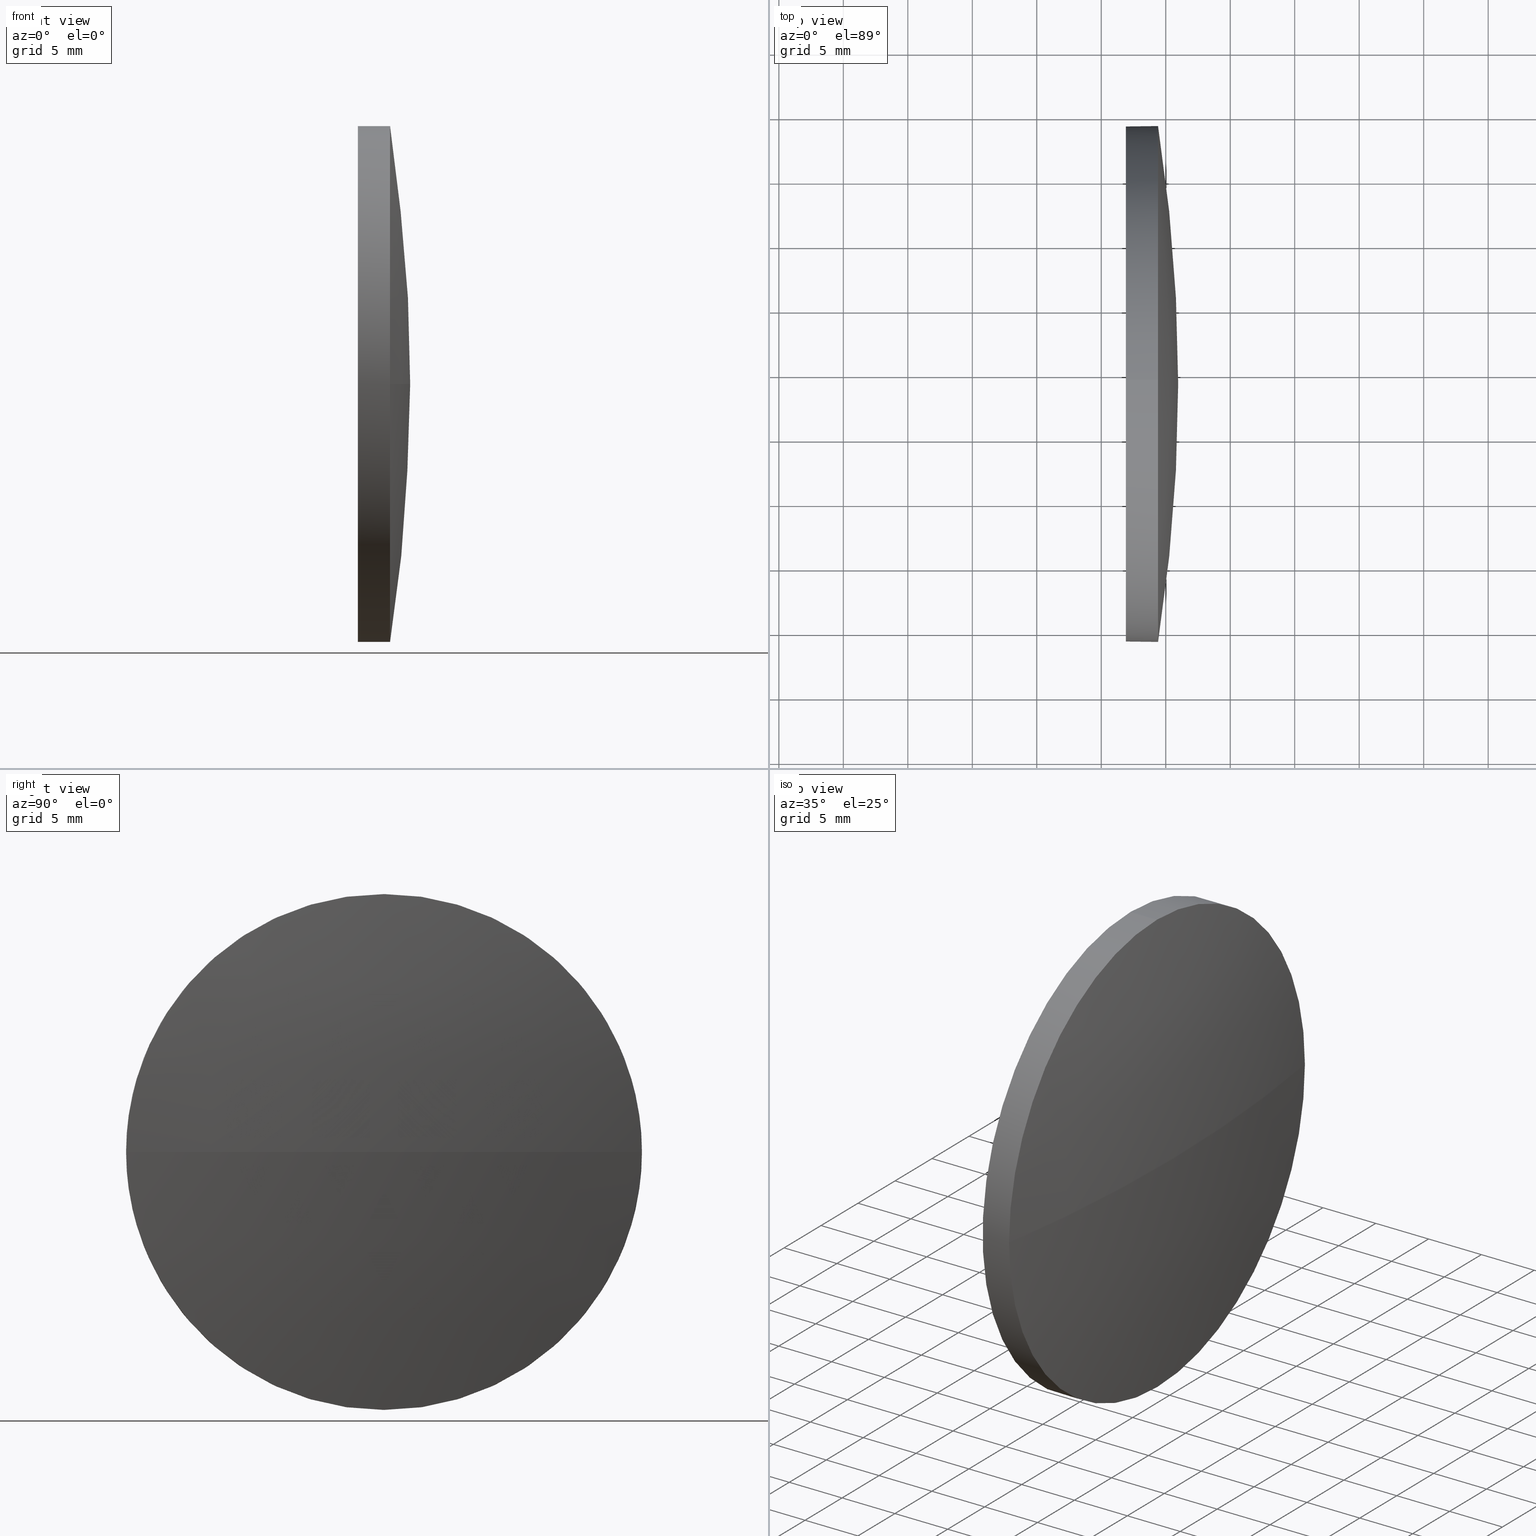
[diagram: canonical four-view strip — front | top / right | iso, engineering-drawing reading convention]
A machine part, canonical four-view strip (front | top / right | iso — engineering-drawing reading convention). The complete STEP part file that produces these views, byte-faithful:
ISO-10303-21;
HEADER;
FILE_DESCRIPTION (( 'STEP AP214' ),
    '1' );
FILE_NAME ('100062.STEP',
    '2019-04-30T05:53:07',
    ( '' ),
    ( '' ),
    'SwSTEP 2.0',
    'SolidWorks 2016',
    '' );
FILE_SCHEMA (( 'AUTOMOTIVE_DESIGN' ));
ENDSEC;

DATA;
#1 = CYLINDRICAL_SURFACE ( 'NONE', #23, 19.99999999999996100 ) ;
#2 = STYLED_ITEM ( 'NONE', ( #50 ), #56 ) ;
#3 = ORIENTED_EDGE ( 'NONE', *, *, #150, .T. ) ;
#4 = VERTEX_POINT ( 'NONE', #36 ) ;
#5 =( LENGTH_UNIT ( ) NAMED_UNIT ( * ) SI_UNIT ( .MILLI., .METRE. ) );
#6 = AXIS2_PLACEMENT_3D ( 'NONE', #144, #112, #175 ) ;
#7 =( NAMED_UNIT ( * ) PLANE_ANGLE_UNIT ( ) SI_UNIT ( $, .RADIAN. ) );
#8 = CYLINDRICAL_SURFACE ( 'NONE', #55, 19.99999999999996100 ) ;
#9 = DIRECTION ( 'NONE',  ( 0.0000000000000000000, 0.0000000000000000000, 1.000000000000000000 ) ) ;
#10 = DIRECTION ( 'NONE',  ( -1.000000000000000000, -0.0000000000000000000, -0.0000000000000000000 ) ) ;
#11 = DIRECTION ( 'NONE',  ( -0.0000000000000000000, 0.0000000000000000000, -1.000000000000000000 ) ) ;
#12 = UNCERTAINTY_MEASURE_WITH_UNIT (LENGTH_MEASURE( 1.000000000000000100E-005 ), #5, 'distance_accuracy_value', 'NONE');
#13 = CARTESIAN_POINT ( 'NONE',  ( 872.3977979190676700, 269.1403647376604300, 19.99999999999996100 ) ) ;
#14 = ORIENTED_EDGE ( 'NONE', *, *, #93, .F. ) ;
#15 = AXIS2_PLACEMENT_3D ( 'NONE', #171, #185, #29 ) ;
#16 = LINE ( 'NONE', #13, #134 ) ;
#17 = CARTESIAN_POINT ( 'NONE',  ( 872.3977979190676700, 269.1403647376604300, -19.99999999999996100 ) ) ;
#18 = DIRECTION ( 'NONE',  ( 0.0000000000000000000, 1.224646799147353200E-016, -1.000000000000000000 ) ) ;
#19 = CARTESIAN_POINT ( 'NONE',  ( 872.3977979190676700, 269.1403647376604300, 0.0000000000000000000 ) ) ;
#20 = PLANE ( 'NONE',  #103 ) ;
#21 = UNCERTAINTY_MEASURE_WITH_UNIT (LENGTH_MEASURE( 1.000000000000000100E-005 ), #67, 'distance_accuracy_value', 'NONE');
#22 = CARTESIAN_POINT ( 'NONE',  ( 881.9042952388408600, 269.1403647376604300, 19.99999999999996100 ) ) ;
#23 = AXIS2_PLACEMENT_3D ( 'NONE', #19, #106, #62 ) ;
#24 = ORIENTED_EDGE ( 'NONE', *, *, #102, .F. ) ;
#25 = DIRECTION ( 'NONE',  ( -0.0000000000000000000, 0.0000000000000000000, -1.000000000000000000 ) ) ;
#26 = ORIENTED_EDGE ( 'NONE', *, *, #132, .F. ) ;
#27 = VERTEX_POINT ( 'NONE', #130 ) ;
#28 =( GEOMETRIC_REPRESENTATION_CONTEXT ( 3 ) GLOBAL_UNCERTAINTY_ASSIGNED_CONTEXT ( ( #12 ) ) GLOBAL_UNIT_ASSIGNED_CONTEXT ( ( #5, #7, #60 ) ) REPRESENTATION_CONTEXT ( 'NONE', 'WORKASPACE' ) );
#29 = DIRECTION ( 'NONE',  ( 0.0000000000000000000, 0.0000000000000000000, 1.000000000000000000 ) ) ;
#30 = CARTESIAN_POINT ( 'NONE',  ( 881.9042952388408600, 269.1403647376604300, 0.0000000000000000000 ) ) ;
#31 = CIRCLE ( 'NONE', #61, 128.9851282051280900 ) ;
#32 = DIRECTION ( 'NONE',  ( 0.0000000000000000000, 0.0000000000000000000, -1.000000000000000000 ) ) ;
#33 = EDGE_LOOP ( 'NONE', ( #3, #133 ) ) ;
#34 = CARTESIAN_POINT ( 'NONE',  ( 0.0000000000000000000, 0.0000000000000000000, 0.0000000000000000000 ) ) ;
#35 = DIRECTION ( 'NONE',  ( 0.0000000000000000000, 0.0000000000000000000, 1.000000000000000000 ) ) ;
#36 = CARTESIAN_POINT ( 'NONE',  ( 884.4042952388408600, 289.1403647376604300, 0.0000000000000000000 ) ) ;
#37 = DIRECTION ( 'NONE',  ( 0.0000000000000000000, 1.000000000000000000, 0.0000000000000000000 ) ) ;
#38 = ORIENTED_EDGE ( 'NONE', *, *, #115, .F. ) ;
#39 = AXIS2_PLACEMENT_3D ( 'NONE', #71, #174, #35 ) ;
#40 = CIRCLE ( 'NONE', #53, 19.99999999999996100 ) ;
#41 = PRODUCT ( '100062', '100062', '', ( #173 ) ) ;
#42 = PRESENTATION_LAYER_ASSIGNMENT (  '', '', ( #2 ) ) ;
#43 = PRODUCT_DEFINITION_SHAPE ( 'NONE', 'NONE',  #138 ) ;
#44 = DIRECTION ( 'NONE',  ( -1.000000000000000000, -0.0000000000000000000, -0.0000000000000000000 ) ) ;
#45 = DIRECTION ( 'NONE',  ( 0.0000000000000000000, 0.0000000000000000000, 1.000000000000000000 ) ) ;
#46 = PRODUCT_RELATED_PRODUCT_CATEGORY ( 'part', '', ( #41 ) ) ;
#47 = CIRCLE ( 'NONE', #15, 19.99999999999996100 ) ;
#48 = ADVANCED_FACE ( 'NONE', ( #131 ), #176, .T. ) ;
#49 = CARTESIAN_POINT ( 'NONE',  ( 884.4042952388408600, 269.1403647376604300, 0.0000000000000000000 ) ) ;
#50 = PRESENTATION_STYLE_ASSIGNMENT (( #90 ) ) ;
#51 = ORIENTED_EDGE ( 'NONE', *, *, #69, .F. ) ;
#52 =( NAMED_UNIT ( * ) SI_UNIT ( $, .STERADIAN. ) SOLID_ANGLE_UNIT ( ) );
#53 = AXIS2_PLACEMENT_3D ( 'NONE', #30, #157, #45 ) ;
#54 = DIRECTION ( 'NONE',  ( 1.000000000000000000, 0.0000000000000000000, 0.0000000000000000000 ) ) ;
#55 = AXIS2_PLACEMENT_3D ( 'NONE', #156, #44, #64 ) ;
#56 = MANIFOLD_SOLID_BREP ( '��ת1', #59 ) ;
#57 = SHAPE_DEFINITION_REPRESENTATION ( #43, #180 ) ;
#58 = LINE ( 'NONE', #17, #135 ) ;
#59 = CLOSED_SHELL ( 'NONE', ( #63, #108, #48, #139, #122 ) ) ;
#60 =( NAMED_UNIT ( * ) SI_UNIT ( $, .STERADIAN. ) SOLID_ANGLE_UNIT ( ) );
#61 = AXIS2_PLACEMENT_3D ( 'NONE', #137, #18, #123 ) ;
#62 = DIRECTION ( 'NONE',  ( 0.0000000000000000000, 0.0000000000000000000, 1.000000000000000000 ) ) ;
#63 = ADVANCED_FACE ( 'NONE', ( #74 ), #1, .T. ) ;
#64 = DIRECTION ( 'NONE',  ( 0.0000000000000000000, 0.0000000000000000000, 1.000000000000000000 ) ) ;
#65 = CIRCLE ( 'NONE', #120, 128.9851282051280900 ) ;
#66 = CARTESIAN_POINT ( 'NONE',  ( 756.9791670337127700, 269.1403647376603800, 0.0000000000000000000 ) ) ;
#67 =( LENGTH_UNIT ( ) NAMED_UNIT ( * ) SI_UNIT ( .MILLI., .METRE. ) );
#68 = VERTEX_POINT ( 'NONE', #169 ) ;
#69 = EDGE_CURVE ( 'NONE', #4, #136, #47, .T. ) ;
#70 =( NAMED_UNIT ( * ) PLANE_ANGLE_UNIT ( ) SI_UNIT ( $, .RADIAN. ) );
#71 = CARTESIAN_POINT ( 'NONE',  ( 884.4042952388408600, 269.1403647376604300, 0.0000000000000000000 ) ) ;
#72 = ORIENTED_EDGE ( 'NONE', *, *, #69, .T. ) ;
#73 = ORIENTED_EDGE ( 'NONE', *, *, #170, .T. ) ;
#74 = FACE_OUTER_BOUND ( 'NONE', #94, .T. ) ;
#75 = CIRCLE ( 'NONE', #6, 19.99999999999996100 ) ;
#76 = EDGE_LOOP ( 'NONE', ( #26, #73, #152, #177, #14 ) ) ;
#77 = DIRECTION ( 'NONE',  ( -1.000000000000000000, -0.0000000000000000000, -0.0000000000000000000 ) ) ;
#78 = ORIENTED_EDGE ( 'NONE', *, *, #150, .F. ) ;
#79 = PRESENTATION_LAYER_ASSIGNMENT (  '', '', ( #88 ) ) ;
#80 = CARTESIAN_POINT ( 'NONE',  ( 884.4042952388408600, 269.1403647376604300, 19.99999999999996100 ) ) ;
#81 = VERTEX_POINT ( 'NONE', #80 ) ;
#82 = APPLICATION_PROTOCOL_DEFINITION ( 'draft international standard', 'automotive_design', 1998, #162 ) ;
#83 =( NAMED_UNIT ( * ) SI_UNIT ( $, .STERADIAN. ) SOLID_ANGLE_UNIT ( ) );
#84 = AXIS2_PLACEMENT_3D ( 'NONE', #153, #10, #9 ) ;
#85 = FILL_AREA_STYLE_COLOUR ( '', #151 ) ;
#86 = SURFACE_STYLE_FILL_AREA ( #147 ) ;
#87 = EDGE_CURVE ( 'NONE', #81, #4, #166, .T. ) ;
#88 = STYLED_ITEM ( 'NONE', ( #114 ), #180 ) ;
#89 = PRODUCT_DEFINITION_CONTEXT ( 'detailed design', #162, 'design' ) ;
#90 = SURFACE_STYLE_USAGE ( .BOTH. , #119 ) ;
#91 = CARTESIAN_POINT ( 'NONE',  ( 884.4042952388408600, 249.1403647376604300, -2.449293598294702600E-015 ) ) ;
#92 = DIRECTION ( 'NONE',  ( -0.0000000000000000000, 0.0000000000000000000, 1.000000000000000000 ) ) ;
#93 = EDGE_CURVE ( 'NONE', #68, #181, #40, .T. ) ;
#94 = EDGE_LOOP ( 'NONE', ( #72, #101, #78, #117, #113 ) ) ;
#95 = DIRECTION ( 'NONE',  ( -1.000000000000000000, -0.0000000000000000000, -0.0000000000000000000 ) ) ;
#96 = ORIENTED_EDGE ( 'NONE', *, *, #179, .T. ) ;
#97 = CARTESIAN_POINT ( 'NONE',  ( 756.9791670337127700, 269.1403647376603800, 0.0000000000000000000 ) ) ;
#98 = CIRCLE ( 'NONE', #99, 19.99999999999996100 ) ;
#99 = AXIS2_PLACEMENT_3D ( 'NONE', #49, #77, #121 ) ;
#100 = SPHERICAL_SURFACE ( 'NONE', #178, 128.9851282051280900 ) ;
#101 = ORIENTED_EDGE ( 'NONE', *, *, #132, .T. ) ;
#102 = EDGE_CURVE ( 'NONE', #27, #143, #31, .T. ) ;
#103 = AXIS2_PLACEMENT_3D ( 'NONE', #104, #158, #32 ) ;
#104 = CARTESIAN_POINT ( 'NONE',  ( 881.9042952388408600, 269.1403647376604300, 0.0000000000000000000 ) ) ;
#105 = ORIENTED_EDGE ( 'NONE', *, *, #87, .F. ) ;
#106 = DIRECTION ( 'NONE',  ( -1.000000000000000000, -0.0000000000000000000, -0.0000000000000000000 ) ) ;
#107 = MECHANICAL_DESIGN_GEOMETRIC_PRESENTATION_REPRESENTATION (  '', ( #88 ), #154 ) ;
#108 = ADVANCED_FACE ( 'NONE', ( #163 ), #100, .T. ) ;
#109 = DIRECTION ( 'NONE',  ( 0.0000000000000000000, 1.000000000000000000, 0.0000000000000000000 ) ) ;
#110 = FACE_OUTER_BOUND ( 'NONE', #33, .T. ) ;
#111 = FACE_OUTER_BOUND ( 'NONE', #76, .T. ) ;
#112 = DIRECTION ( 'NONE',  ( -1.000000000000000000, -0.0000000000000000000, -0.0000000000000000000 ) ) ;
#113 = ORIENTED_EDGE ( 'NONE', *, *, #87, .T. ) ;
#114 = PRESENTATION_STYLE_ASSIGNMENT (( #126 ) ) ;
#115 = EDGE_CURVE ( 'NONE', #143, #81, #98, .T. ) ;
#116 = ORIENTED_EDGE ( 'NONE', *, *, #102, .T. ) ;
#117 = ORIENTED_EDGE ( 'NONE', *, *, #142, .F. ) ;
#118 = AXIS2_PLACEMENT_3D ( 'NONE', #34, #145, #160 ) ;
#119 = SURFACE_SIDE_STYLE ('',( #86 ) ) ;
#120 = AXIS2_PLACEMENT_3D ( 'NONE', #66, #92, #54 ) ;
#121 = DIRECTION ( 'NONE',  ( 0.0000000000000000000, 0.0000000000000000000, 1.000000000000000000 ) ) ;
#122 = ADVANCED_FACE ( 'NONE', ( #110 ), #20, .F. ) ;
#123 = DIRECTION ( 'NONE',  ( 0.0000000000000000000, 1.000000000000000000, 1.224646799147353200E-016 ) ) ;
#124 = SURFACE_SIDE_STYLE ('',( #148 ) ) ;
#125 = FILL_AREA_STYLE ('',( #85 ) ) ;
#126 = SURFACE_STYLE_USAGE ( .BOTH. , #124 ) ;
#127 =( GEOMETRIC_REPRESENTATION_CONTEXT ( 3 ) GLOBAL_UNCERTAINTY_ASSIGNED_CONTEXT ( ( #21 ) ) GLOBAL_UNIT_ASSIGNED_CONTEXT ( ( #67, #70, #52 ) ) REPRESENTATION_CONTEXT ( 'NONE', 'WORKASPACE' ) );
#128 =( NAMED_UNIT ( * ) PLANE_ANGLE_UNIT ( ) SI_UNIT ( $, .RADIAN. ) );
#129 =( LENGTH_UNIT ( ) NAMED_UNIT ( * ) SI_UNIT ( .MILLI., .METRE. ) );
#130 = CARTESIAN_POINT ( 'NONE',  ( 885.9642952388409200, 269.1403647376603800, 0.0000000000000000000 ) ) ;
#131 = FACE_OUTER_BOUND ( 'NONE', #183, .T. ) ;
#132 = EDGE_CURVE ( 'NONE', #136, #68, #58, .T. ) ;
#133 = ORIENTED_EDGE ( 'NONE', *, *, #93, .T. ) ;
#134 = VECTOR ( 'NONE', #95, 1000.000000000000000 ) ;
#135 = VECTOR ( 'NONE', #184, 1000.000000000000000 ) ;
#136 = VERTEX_POINT ( 'NONE', #182 ) ;
#137 = CARTESIAN_POINT ( 'NONE',  ( 756.9791670337127700, 269.1403647376603800, 0.0000000000000000000 ) ) ;
#138 = PRODUCT_DEFINITION ( 'δ֪', '', #164, #89 ) ;
#139 = ADVANCED_FACE ( 'NONE', ( #111 ), #8, .T. ) ;
#140 = CARTESIAN_POINT ( 'NONE',  ( 756.9791670337127700, 269.1403647376603800, 0.0000000000000000000 ) ) ;
#141 = CIRCLE ( 'NONE', #39, 19.99999999999996100 ) ;
#142 = EDGE_CURVE ( 'NONE', #81, #181, #16, .T. ) ;
#143 = VERTEX_POINT ( 'NONE', #91 ) ;
#144 = CARTESIAN_POINT ( 'NONE',  ( 881.9042952388408600, 269.1403647376604300, 0.0000000000000000000 ) ) ;
#145 = DIRECTION ( 'NONE',  ( 0.0000000000000000000, 0.0000000000000000000, 1.000000000000000000 ) ) ;
#146 = FILL_AREA_STYLE_COLOUR ( '', #172 ) ;
#147 = FILL_AREA_STYLE ('',( #146 ) ) ;
#148 = SURFACE_STYLE_FILL_AREA ( #125 ) ;
#149 = ORIENTED_EDGE ( 'NONE', *, *, #179, .F. ) ;
#150 = EDGE_CURVE ( 'NONE', #181, #68, #75, .T. ) ;
#151 = COLOUR_RGB ( '',1.000000000000000000, 1.000000000000000000, 1.000000000000000000 ) ;
#152 = ORIENTED_EDGE ( 'NONE', *, *, #115, .T. ) ;
#153 = CARTESIAN_POINT ( 'NONE',  ( 884.4042952388408600, 269.1403647376604300, 0.0000000000000000000 ) ) ;
#154 =( GEOMETRIC_REPRESENTATION_CONTEXT ( 3 ) GLOBAL_UNCERTAINTY_ASSIGNED_CONTEXT ( ( #167 ) ) GLOBAL_UNIT_ASSIGNED_CONTEXT ( ( #129, #128, #83 ) ) REPRESENTATION_CONTEXT ( 'NONE', 'WORKASPACE' ) );
#155 = ORIENTED_EDGE ( 'NONE', *, *, #170, .F. ) ;
#156 = CARTESIAN_POINT ( 'NONE',  ( 872.3977979190676700, 269.1403647376604300, 0.0000000000000000000 ) ) ;
#157 = DIRECTION ( 'NONE',  ( -1.000000000000000000, -0.0000000000000000000, -0.0000000000000000000 ) ) ;
#158 = DIRECTION ( 'NONE',  ( 1.000000000000000000, 0.0000000000000000000, 0.0000000000000000000 ) ) ;
#159 = APPLICATION_PROTOCOL_DEFINITION ( 'draft international standard', 'automotive_design', 1998, #186 ) ;
#160 = DIRECTION ( 'NONE',  ( 1.000000000000000000, 0.0000000000000000000, 0.0000000000000000000 ) ) ;
#161 = EDGE_LOOP ( 'NONE', ( #149, #116, #155, #51 ) ) ;
#162 = APPLICATION_CONTEXT ( 'automotive_design' ) ;
#163 = FACE_OUTER_BOUND ( 'NONE', #161, .T. ) ;
#164 = PRODUCT_DEFINITION_FORMATION_WITH_SPECIFIED_SOURCE ( '�κ�', '', #41, .NOT_KNOWN. ) ;
#165 = AXIS2_PLACEMENT_3D ( 'NONE', #97, #25, #37 ) ;
#166 = CIRCLE ( 'NONE', #84, 19.99999999999996100 ) ;
#167 = UNCERTAINTY_MEASURE_WITH_UNIT (LENGTH_MEASURE( 1.000000000000000100E-005 ), #129, 'distance_accuracy_value', 'NONE');
#168 = MECHANICAL_DESIGN_GEOMETRIC_PRESENTATION_REPRESENTATION (  '', ( #2 ), #28 ) ;
#169 = CARTESIAN_POINT ( 'NONE',  ( 881.9042952388408600, 269.1403647376604300, -19.99999999999996100 ) ) ;
#170 = EDGE_CURVE ( 'NONE', #136, #143, #141, .T. ) ;
#171 = CARTESIAN_POINT ( 'NONE',  ( 884.4042952388408600, 269.1403647376604300, 0.0000000000000000000 ) ) ;
#172 = COLOUR_RGB ( '',1.000000000000000000, 1.000000000000000000, 1.000000000000000000 ) ;
#173 = PRODUCT_CONTEXT ( 'NONE', #186, 'mechanical' ) ;
#174 = DIRECTION ( 'NONE',  ( -1.000000000000000000, -0.0000000000000000000, -0.0000000000000000000 ) ) ;
#175 = DIRECTION ( 'NONE',  ( 0.0000000000000000000, 0.0000000000000000000, 1.000000000000000000 ) ) ;
#176 = SPHERICAL_SURFACE ( 'NONE', #165, 128.9851282051280900 ) ;
#177 = ORIENTED_EDGE ( 'NONE', *, *, #142, .T. ) ;
#178 = AXIS2_PLACEMENT_3D ( 'NONE', #140, #11, #109 ) ;
#179 = EDGE_CURVE ( 'NONE', #27, #4, #65, .T. ) ;
#180 = ADVANCED_BREP_SHAPE_REPRESENTATION ( '100062', ( #56, #118 ), #127 ) ;
#181 = VERTEX_POINT ( 'NONE', #22 ) ;
#182 = CARTESIAN_POINT ( 'NONE',  ( 884.4042952388408600, 269.1403647376604300, -19.99999999999996100 ) ) ;
#183 = EDGE_LOOP ( 'NONE', ( #24, #96, #105, #38 ) ) ;
#184 = DIRECTION ( 'NONE',  ( -1.000000000000000000, -0.0000000000000000000, -0.0000000000000000000 ) ) ;
#185 = DIRECTION ( 'NONE',  ( -1.000000000000000000, -0.0000000000000000000, -0.0000000000000000000 ) ) ;
#186 = APPLICATION_CONTEXT ( 'automotive_design' ) ;
ENDSEC;
END-ISO-10303-21;
